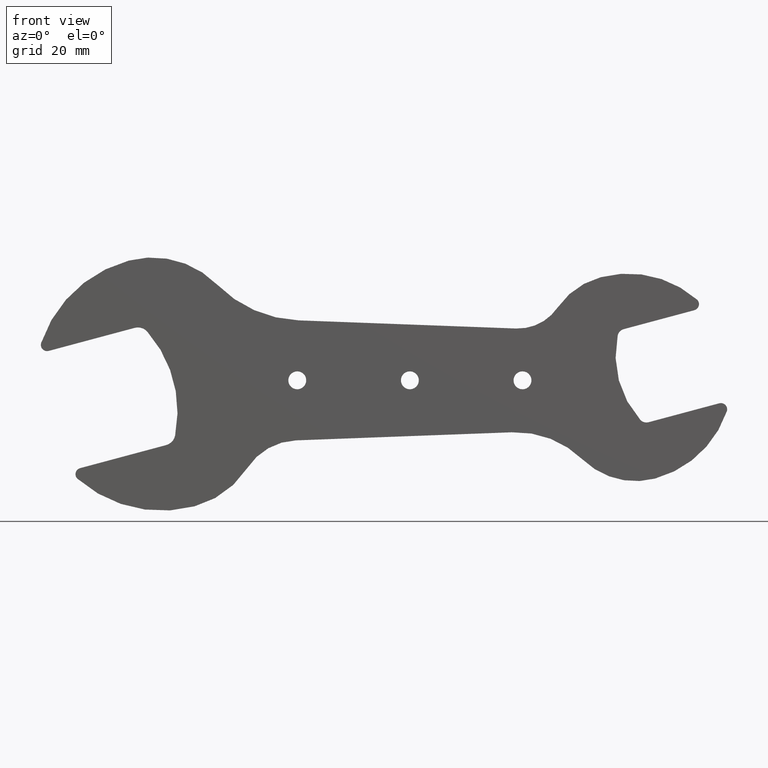
[diagram: clean part render]
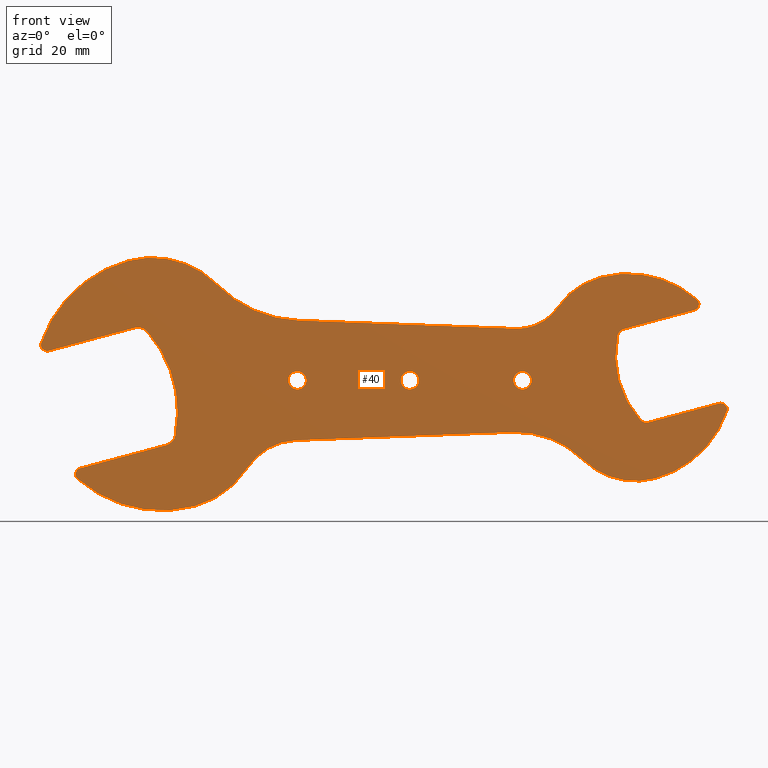
[diagram: same view with one face highlighted and labeled with its STEP entity id]
A machine part, front view. The second image highlights one B-rep face of the part: STEP entity #40.
In plain terms, the highlighted planar face has unit normal (-0, 1, 0).
Its self-contained STEP definition (entity closure, byte-faithful):
#40=ADVANCED_FACE('',(#77,#78,#79,#80),#76,.F.);
#76=PLANE('',#445);
#77=FACE_OUTER_BOUND('',#446,.T.);
#78=FACE_BOUND('',#447,.T.);
#79=FACE_BOUND('',#448,.T.);
#80=FACE_BOUND('',#449,.T.);
#442=CARTESIAN_POINT('',(-9.86938694314E+01,-1.42108547152E-14,-4.10870858466E+01));
#443=DIRECTION('',(-0.00000000000E+00,1.00000000000E+00,0.00000000000E+00));
#444=DIRECTION('',(0.00000000000E+00,0.00000000000E+00,1.00000000000E+00));
#445=AXIS2_PLACEMENT_3D('',#442,#443,#444);
#446=EDGE_LOOP('',(#628,#629,#630,#631,#632,#633,#634,#635,#636,#637,#638,#639,#640,#641,#642,#643,#644,#645,#646,#647,#648,#649,#650,#651,#652,#653,#654,#655));
#447=EDGE_LOOP('',(#656,#657));
#448=EDGE_LOOP('',(#658,#659));
#449=EDGE_LOOP('',(#660,#661));
#628=ORIENTED_EDGE('',*,*,#832,.F.);
#629=ORIENTED_EDGE('',*,*,#833,.T.);
#630=ORIENTED_EDGE('',*,*,#834,.T.);
#631=ORIENTED_EDGE('',*,*,#835,.T.);
#632=ORIENTED_EDGE('',*,*,#836,.F.);
#633=ORIENTED_EDGE('',*,*,#837,.F.);
#634=ORIENTED_EDGE('',*,*,#838,.F.);
#635=ORIENTED_EDGE('',*,*,#839,.F.);
#636=ORIENTED_EDGE('',*,*,#840,.F.);
#637=ORIENTED_EDGE('',*,*,#841,.T.);
#638=ORIENTED_EDGE('',*,*,#842,.T.);
#639=ORIENTED_EDGE('',*,*,#843,.T.);
#640=ORIENTED_EDGE('',*,*,#844,.F.);
#641=ORIENTED_EDGE('',*,*,#845,.F.);
#642=ORIENTED_EDGE('',*,*,#846,.F.);
#643=ORIENTED_EDGE('',*,*,#847,.T.);
#644=ORIENTED_EDGE('',*,*,#848,.T.);
#645=ORIENTED_EDGE('',*,*,#849,.T.);
#646=ORIENTED_EDGE('',*,*,#850,.F.);
#647=ORIENTED_EDGE('',*,*,#851,.F.);
#648=ORIENTED_EDGE('',*,*,#852,.F.);
#649=ORIENTED_EDGE('',*,*,#853,.F.);
#650=ORIENTED_EDGE('',*,*,#854,.F.);
#651=ORIENTED_EDGE('',*,*,#855,.T.);
#652=ORIENTED_EDGE('',*,*,#856,.T.);
#653=ORIENTED_EDGE('',*,*,#857,.T.);
#654=ORIENTED_EDGE('',*,*,#858,.F.);
#655=ORIENTED_EDGE('',*,*,#859,.F.);
#656=ORIENTED_EDGE('',*,*,#860,.F.);
#657=ORIENTED_EDGE('',*,*,#861,.F.);
#658=ORIENTED_EDGE('',*,*,#862,.F.);
#659=ORIENTED_EDGE('',*,*,#863,.F.);
#660=ORIENTED_EDGE('',*,*,#864,.F.);
#661=ORIENTED_EDGE('',*,*,#865,.F.);
#832=EDGE_CURVE('',#934,#935,#936,.T.);
#833=EDGE_CURVE('',#934,#942,#943,.T.);
#834=EDGE_CURVE('',#942,#949,#950,.T.);
#835=EDGE_CURVE('',#949,#956,#957,.T.);
#836=EDGE_CURVE('',#963,#956,#964,.T.);
#837=EDGE_CURVE('',#970,#963,#971,.T.);
#838=EDGE_CURVE('',#977,#970,#978,.T.);
#839=EDGE_CURVE('',#984,#977,#985,.T.);
#840=EDGE_CURVE('',#991,#984,#992,.T.);
#841=EDGE_CURVE('',#991,#998,#999,.T.);
#842=EDGE_CURVE('',#998,#1005,#1006,.T.);
#843=EDGE_CURVE('',#1005,#1012,#1013,.T.);
#844=EDGE_CURVE('',#1019,#1012,#1020,.T.);
#845=EDGE_CURVE('',#1026,#1019,#1027,.T.);
#846=EDGE_CURVE('',#1033,#1026,#1034,.T.);
#847=EDGE_CURVE('',#1033,#1040,#1041,.T.);
#848=EDGE_CURVE('',#1040,#1047,#1048,.T.);
#849=EDGE_CURVE('',#1047,#1054,#1055,.T.);
#850=EDGE_CURVE('',#1061,#1054,#1062,.T.);
#851=EDGE_CURVE('',#1068,#1061,#1069,.T.);
#852=EDGE_CURVE('',#1075,#1068,#1076,.T.);
#853=EDGE_CURVE('',#1082,#1075,#1083,.T.);
#854=EDGE_CURVE('',#1089,#1082,#1090,.T.);
#855=EDGE_CURVE('',#1089,#1096,#1097,.T.);
#856=EDGE_CURVE('',#1096,#1103,#1104,.T.);
#857=EDGE_CURVE('',#1103,#1110,#1111,.T.);
#858=EDGE_CURVE('',#1117,#1110,#1118,.T.);
#859=EDGE_CURVE('',#935,#1117,#1124,.T.);
#860=EDGE_CURVE('',#1130,#1131,#1132,.T.);
#861=EDGE_CURVE('',#1131,#1130,#1138,.T.);
#862=EDGE_CURVE('',#1144,#1145,#1146,.T.);
#863=EDGE_CURVE('',#1145,#1144,#1152,.T.);
#864=EDGE_CURVE('',#1158,#1159,#1160,.T.);
#865=EDGE_CURVE('',#1159,#1158,#1166,.T.);
#934=VERTEX_POINT('',#1614);
#935=VERTEX_POINT('',#1615);
#936=CIRCLE('',#1619,2.90000000000E+01);
#942=VERTEX_POINT('',#1620);
#943=CIRCLE('',#1624,2.17999871439E+01);
#949=VERTEX_POINT('',#1625);
#950=CIRCLE('',#1629,3.05000000000E+01);
#956=VERTEX_POINT('',#1630);
#957=CIRCLE('',#1634,1.50000000000E+00);
#963=VERTEX_POINT('',#1635);
#964=LINE('',#1636,#1637);
#970=VERTEX_POINT('',#1639);
#971=CIRCLE('',#1643,3.00000000000E+00);
#977=VERTEX_POINT('',#1644);
#978=CIRCLE('',#1648,2.90000000000E+01);
#984=VERTEX_POINT('',#1649);
#985=CIRCLE('',#1653,3.00000000000E+00);
#991=VERTEX_POINT('',#1654);
#992=LINE('',#1655,#1656);
#998=VERTEX_POINT('',#1658);
#999=CIRCLE('',#1662,1.50000000000E+00);
#1005=VERTEX_POINT('',#1663);
#1006=CIRCLE('',#1667,3.05000000000E+01);
#1012=VERTEX_POINT('',#1668);
#1013=CIRCLE('',#1672,2.18000000000E+01);
#1019=VERTEX_POINT('',#1673);
#1020=CIRCLE('',#1677,1.45000000000E+01);
#1026=VERTEX_POINT('',#1678);
#1027=LINE('',#1679,#1680);
#1033=VERTEX_POINT('',#1682);
#1034=CIRCLE('',#1686,2.30000000000E+01);
#1040=VERTEX_POINT('',#1687);
#1041=CIRCLE('',#1691,1.81000000000E+01);
#1047=VERTEX_POINT('',#1692);
#1048=CIRCLE('',#1696,2.50000000000E+01);
#1054=VERTEX_POINT('',#1697);
#1055=CIRCLE('',#1701,1.50000000000E+00);
#1061=VERTEX_POINT('',#1702);
#1062=LINE('',#1703,#1704);
#1068=VERTEX_POINT('',#1706);
#1069=CIRCLE('',#1710,2.00000000000E+00);
#1075=VERTEX_POINT('',#1711);
#1076=CIRCLE('',#1715,2.30000000000E+01);
#1082=VERTEX_POINT('',#1716);
#1083=CIRCLE('',#1720,2.00000000000E+00);
#1089=VERTEX_POINT('',#1721);
#1090=LINE('',#1722,#1723);
#1096=VERTEX_POINT('',#1725);
#1097=CIRCLE('',#1729,1.50000000000E+00);
#1103=VERTEX_POINT('',#1730);
#1104=CIRCLE('',#1734,2.50000000000E+01);
#1110=VERTEX_POINT('',#1735);
#1111=CIRCLE('',#1739,1.81000000000E+01);
#1117=VERTEX_POINT('',#1740);
#1118=CIRCLE('',#1744,1.15000000000E+01);
#1124=LINE('',#1745,#1746);
#1130=VERTEX_POINT('',#1748);
#1131=VERTEX_POINT('',#1749);
#1132=CIRCLE('',#1753,2.15000000000E+00);
#1138=CIRCLE('',#1757,2.15000000000E+00);
#1144=VERTEX_POINT('',#1758);
#1145=VERTEX_POINT('',#1759);
#1146=CIRCLE('',#1763,2.15000000000E+00);
#1152=CIRCLE('',#1767,2.15000000000E+00);
#1158=VERTEX_POINT('',#1768);
#1159=VERTEX_POINT('',#1769);
#1160=CIRCLE('',#1773,2.15000000000E+00);
#1166=CIRCLE('',#1777,2.15000000000E+00);
#1614=CARTESIAN_POINT('',(-4.62450529806E+01,0.00000000000E+00,2.29744046267E+01));
#1615=CARTESIAN_POINT('',(-2.67006986228E+01,0.00000000000E+00,1.43764308680E+01));
#1616=CARTESIAN_POINT('',(-2.56153175518E+01,0.00000000000E+00,4.33561125076E+01));
#1617=DIRECTION('',(0.00000000000E+00,-1.00000000000E+00,0.00000000000E+00));
#1618=DIRECTION('',(-0.00000000000E+00,-0.00000000000E+00,-1.00000000000E+00));
#1619=AXIS2_PLACEMENT_3D('',#1616,#1617,#1618);
#1620=CARTESIAN_POINT('',(-6.73951675109E+01,0.00000000000E+00,2.87101620051E+01));
#1621=CARTESIAN_POINT('',(-6.17529139160E+01,0.00000000000E+00,7.65299187596E+00));
#1622=DIRECTION('',(0.00000000000E+00,-1.00000000000E+00,0.00000000000E+00));
#1623=DIRECTION('',(-0.00000000000E+00,-0.00000000000E+00,-1.00000000000E+00));
#1624=AXIS2_PLACEMENT_3D('',#1621,#1622,#1623);
#1625=CARTESIAN_POINT('',(-8.84074606130E+01,0.00000000000E+00,8.97965167578E+00));
#1626=CARTESIAN_POINT('',(-5.95011866352E+01,0.00000000000E+00,-7.50575696762E-01));
#1627=DIRECTION('',(0.00000000000E+00,-1.00000000000E+00,0.00000000000E+00));
#1628=DIRECTION('',(-0.00000000000E+00,-0.00000000000E+00,-1.00000000000E+00));
#1629=AXIS2_PLACEMENT_3D('',#1626,#1627,#1628);
#1630=CARTESIAN_POINT('',(-8.65976119957E+01,0.00000000000E+00,7.05222716874E+00));
#1631=CARTESIAN_POINT('',(-8.69858405813E+01,0.00000000000E+00,8.50111590336E+00));
#1632=DIRECTION('',(0.00000000000E+00,-1.00000000000E+00,-0.00000000000E+00));
#1633=DIRECTION('',(2.58819057078E-01,0.00000000000E+00,-9.65925823080E-01));
#1634=AXIS2_PLACEMENT_3D('',#1631,#1632,#1633);
#1635=CARTESIAN_POINT('',(-6.59776610852E+01,0.00000000000E+00,1.25773266372E+01));
#1636=CARTESIAN_POINT('',(-6.59776610852E+01,-1.42108547152E-14,1.25773266372E+01));
#1637=VECTOR('',#1638,2.13473440898E+01);
#1638=DIRECTION('',(-9.65925823080E-01,0.00000000000E+00,-2.58819057078E-01));
#1639=CARTESIAN_POINT('',(-6.29499755149E+01,0.00000000000E+00,1.16624689079E+01));
#1640=CARTESIAN_POINT('',(-6.52012039140E+01,0.00000000000E+00,9.67954916794E+00));
#1641=DIRECTION('',(0.00000000000E+00,-1.00000000000E+00,0.00000000000E+00));
#1642=DIRECTION('',(-0.00000000000E+00,-0.00000000000E+00,-1.00000000000E+00));
#1643=AXIS2_PLACEMENT_3D('',#1640,#1641,#1642);
#1644=CARTESIAN_POINT('',(-5.62814005209E+01,0.00000000000E+00,-1.32249807339E+01));
#1645=CARTESIAN_POINT('',(-8.47118500392E+01,0.00000000000E+00,-7.50575524534E+00));
#1646=DIRECTION('',(0.00000000000E+00,-1.00000000000E+00,0.00000000000E+00));
#1647=DIRECTION('',(-0.00000000000E+00,-0.00000000000E+00,-1.00000000000E+00));
#1648=AXIS2_PLACEMENT_3D('',#1645,#1646,#1647);
#1649=CARTESIAN_POINT('',(-5.84460243285E+01,0.00000000000E+00,-1.55311141855E+01));
#1650=CARTESIAN_POINT('',(-5.92224815056E+01,0.00000000000E+00,-1.26333367178E+01));
#1651=DIRECTION('',(0.00000000000E+00,-1.00000000000E+00,0.00000000000E+00));
#1652=DIRECTION('',(-0.00000000000E+00,-0.00000000000E+00,-1.00000000000E+00));
#1653=AXIS2_PLACEMENT_3D('',#1650,#1651,#1652);
#1654=CARTESIAN_POINT('',(-7.90659692365E+01,0.00000000000E+00,-2.10562120902E+01));
#1655=CARTESIAN_POINT('',(-7.90659692365E+01,-1.42108547152E-14,-2.10562120902E+01));
#1656=VECTOR('',#1657,2.13473378872E+01);
#1657=DIRECTION('',(9.65925822557E-01,0.00000000000E+00,2.58819059030E-01));
#1658=CARTESIAN_POINT('',(-7.96696312007E+01,0.00000000000E+00,-2.36303355247E+01));
#1659=CARTESIAN_POINT('',(-7.86777406480E+01,0.00000000000E+00,-2.25051008241E+01));
#1660=DIRECTION('',(0.00000000000E+00,-1.00000000000E+00,0.00000000000E+00));
#1661=DIRECTION('',(-0.00000000000E+00,-0.00000000000E+00,-1.00000000000E+00));
#1662=AXIS2_PLACEMENT_3D('',#1659,#1660,#1661);
#1663=CARTESIAN_POINT('',(-5.16072073480E+01,0.00000000000E+00,-3.02113005146E+01));
#1664=CARTESIAN_POINT('',(-5.95011899626E+01,0.00000000000E+00,-7.50563278718E-01));
#1665=DIRECTION('',(0.00000000000E+00,-1.00000000000E+00,-0.00000000000E+00));
#1666=DIRECTION('',(2.58819102119E-01,0.00000000000E+00,-9.65925811012E-01));
#1667=AXIS2_PLACEMENT_3D('',#1664,#1665,#1666);
#1668=CARTESIAN_POINT('',(-3.89528773784E+01,0.00000000000E+00,-2.10063312923E+01));
#1669=CARTESIAN_POINT('',(-5.72494625313E+01,0.00000000000E+00,-9.15411750147E+00));
#1670=DIRECTION('',(0.00000000000E+00,-1.00000000000E+00,0.00000000000E+00));
#1671=DIRECTION('',(-0.00000000000E+00,-0.00000000000E+00,-1.00000000000E+00));
#1672=AXIS2_PLACEMENT_3D('',#1669,#1670,#1671);
#1673=CARTESIAN_POINT('',(-2.73258209085E+01,0.00000000000E+00,-1.43998436820E+01));
#1674=CARTESIAN_POINT('',(-2.67831303730E+01,0.00000000000E+00,-2.88896845018E+01));
#1675=DIRECTION('',(0.00000000000E+00,-1.00000000000E+00,0.00000000000E+00));
#1676=DIRECTION('',(-0.00000000000E+00,-0.00000000000E+00,-1.00000000000E+00));
#1677=AXIS2_PLACEMENT_3D('',#1674,#1675,#1676);
#1678=CARTESIAN_POINT('',(2.44989940176E+01,0.00000000000E+00,-1.24588398495E+01));
#1679=CARTESIAN_POINT('',(2.44989940176E+01,-1.42108547152E-14,-1.24588398495E+01));
#1680=VECTOR('',#1681,5.18611505658E+01);
#1681=DIRECTION('',(-9.99299366882E-01,0.00000000000E+00,-3.74269334824E-02));
#1682=CARTESIAN_POINT('',(4.14473294375E+01,0.00000000000E+00,-1.90052123809E+01));
#1683=CARTESIAN_POINT('',(2.53598134877E+01,0.00000000000E+00,-3.54427252877E+01));
#1684=DIRECTION('',(0.00000000000E+00,-1.00000000000E+00,0.00000000000E+00));
#1685=DIRECTION('',(-0.00000000000E+00,-0.00000000000E+00,-1.00000000000E+00));
#1686=AXIS2_PLACEMENT_3D('',#1683,#1684,#1685);
#1687=CARTESIAN_POINT('',(5.87921297601E+01,0.00000000000E+00,-2.35528617592E+01));
#1688=CARTESIAN_POINT('',(5.41075050329E+01,0.00000000000E+00,-6.06960439766E+00));
#1689=DIRECTION('',(0.00000000000E+00,-1.00000000000E+00,-0.00000000000E+00));
#1690=DIRECTION('',(2.58819046965E-01,0.00000000000E+00,-9.65925825790E-01));
#1691=AXIS2_PLACEMENT_3D('',#1688,#1689,#1690);
#1692=CARTESIAN_POINT('',(7.59973318661E+01,0.00000000000E+00,-7.43355538175E+00));
#1693=CARTESIAN_POINT('',(5.23216536325E+01,0.00000000000E+00,5.95283898053E-01));
#1694=DIRECTION('',(0.00000000000E+00,-1.00000000000E+00,0.00000000000E+00));
#1695=DIRECTION('',(-0.00000000000E+00,-0.00000000000E+00,-1.00000000000E+00));
#1696=AXIS2_PLACEMENT_3D('',#1693,#1694,#1695);
#1697=CARTESIAN_POINT('',(7.41885627805E+01,0.00000000000E+00,-5.50293623834E+00));
#1698=CARTESIAN_POINT('',(7.45767911721E+01,0.00000000000E+00,-6.95182502496E+00));
#1699=DIRECTION('',(0.00000000000E+00,-1.00000000000E+00,0.00000000000E+00));
#1700=DIRECTION('',(-0.00000000000E+00,-0.00000000000E+00,-1.00000000000E+00));
#1701=AXIS2_PLACEMENT_3D('',#1698,#1699,#1700);
#1702=CARTESIAN_POINT('',(5.72400877804E+01,0.00000000000E+00,-1.00442642195E+01));
#1703=CARTESIAN_POINT('',(5.72400877804E+01,-1.42108547152E-14,-1.00442642195E+01));
#1704=VECTOR('',#1705,1.75463518904E+01);
#1705=DIRECTION('',(9.65925857749E-01,0.00000000000E+00,2.58818927691E-01));
#1706=CARTESIAN_POINT('',(5.52373196040E+01,0.00000000000E+00,-9.45196016256E+00));
#1707=CARTESIAN_POINT('',(5.67224499250E+01,0.00000000000E+00,-8.11241250399E+00));
#1708=DIRECTION('',(0.00000000000E+00,-1.00000000000E+00,-0.00000000000E+00));
#1709=DIRECTION('',(2.58818927691E-01,0.00000000000E+00,-9.65925857749E-01));
#1710=AXIS2_PLACEMENT_3D('',#1707,#1708,#1709);
#1711=CARTESIAN_POINT('',(4.98230733843E+01,0.00000000000E+00,1.07542890820E+01));
#1712=CARTESIAN_POINT('',(7.23163182959E+01,0.00000000000E+00,5.95283791090E+00));
#1713=DIRECTION('',(0.00000000000E+00,-1.00000000000E+00,0.00000000000E+00));
#1714=DIRECTION('',(-0.00000000000E+00,-0.00000000000E+00,-1.00000000000E+00));
#1715=AXIS2_PLACEMENT_3D('',#1712,#1713,#1714);
#1716=CARTESIAN_POINT('',(5.12613698656E+01,0.00000000000E+00,1.22686233034E+01));
#1717=CARTESIAN_POINT('',(5.17790077244E+01,0.00000000000E+00,1.03367715889E+01));
#1718=DIRECTION('',(0.00000000000E+00,-1.00000000000E+00,0.00000000000E+00));
#1719=DIRECTION('',(-0.00000000000E+00,-0.00000000000E+00,-1.00000000000E+00));
#1720=AXIS2_PLACEMENT_3D('',#1717,#1718,#1719);
#1721=CARTESIAN_POINT('',(6.82098432396E+01,0.00000000000E+00,1.68099508809E+01));
#1722=CARTESIAN_POINT('',(6.82098432396E+01,-1.42108547152E-14,1.68099508809E+01));
#1723=VECTOR('',#1724,1.75463502152E+01);
#1724=DIRECTION('',(-9.65925857294E-01,0.00000000000E+00,-2.58818929391E-01));
#1725=CARTESIAN_POINT('',(6.88109740719E+01,0.00000000000E+00,1.93863006733E+01));
#1726=CARTESIAN_POINT('',(6.78216148455E+01,0.00000000000E+00,1.82588396668E+01));
#1727=DIRECTION('',(0.00000000000E+00,-1.00000000000E+00,0.00000000000E+00));
#1728=DIRECTION('',(-0.00000000000E+00,-0.00000000000E+00,-1.00000000000E+00));
#1729=AXIS2_PLACEMENT_3D('',#1726,#1727,#1728);
#1730=CARTESIAN_POINT('',(4.57431619755E+01,0.00000000000E+00,2.47142276461E+01));
#1731=CARTESIAN_POINT('',(5.23216536325E+01,0.00000000000E+00,5.95283898053E-01));
#1732=DIRECTION('',(0.00000000000E+00,-1.00000000000E+00,0.00000000000E+00));
#1733=DIRECTION('',(-0.00000000000E+00,-0.00000000000E+00,-1.00000000000E+00));
#1734=AXIS2_PLACEMENT_3D('',#1731,#1732,#1733);
#1735=CARTESIAN_POINT('',(3.53948474156E+01,0.00000000000E+00,1.74231578136E+01));
#1736=CARTESIAN_POINT('',(5.03357797283E+01,0.00000000000E+00,7.20657611373E+00));
#1737=DIRECTION('',(0.00000000000E+00,-1.00000000000E+00,0.00000000000E+00));
#1738=DIRECTION('',(-0.00000000000E+00,-0.00000000000E+00,-1.00000000000E+00));
#1739=AXIS2_PLACEMENT_3D('',#1736,#1737,#1738);
#1740=CARTESIAN_POINT('',(2.54715801339E+01,0.00000000000E+00,1.24224134120E+01));
#1741=CARTESIAN_POINT('',(2.59019898689E+01,0.00000000000E+00,2.39143561312E+01));
#1742=DIRECTION('',(0.00000000000E+00,-1.00000000000E+00,-0.00000000000E+00));
#1743=DIRECTION('',(8.25465873626E-01,0.00000000000E+00,-5.64452027616E-01));
#1744=AXIS2_PLACEMENT_3D('',#1741,#1742,#1743);
#1745=CARTESIAN_POINT('',(-2.67006986228E+01,-1.42108547152E-14,1.43764308680E+01));
#1746=VECTOR('',#1747,5.22088580117E+01);
#1747=DIRECTION('',(9.99299366882E-01,0.00000000000E+00,-3.74269334824E-02));
#1748=CARTESIAN_POINT('',(5.18104078158E-16,0.00000000000E+00,-2.15000000000E+00));
#1749=CARTESIAN_POINT('',(0.00000000000E+00,0.00000000000E+00,2.15000000000E+00));
#1750=CARTESIAN_POINT('',(0.00000000000E+00,0.00000000000E+00,-1.13686837722E-13));
#1751=DIRECTION('',(0.00000000000E+00,-1.00000000000E+00,0.00000000000E+00));
#1752=DIRECTION('',(-1.22460635382E-16,0.00000000000E+00,1.00000000000E+00));
#1753=AXIS2_PLACEMENT_3D('',#1750,#1751,#1752);
#1754=CARTESIAN_POINT('',(0.00000000000E+00,0.00000000000E+00,-1.13686837722E-13));
#1755=DIRECTION('',(0.00000000000E+00,-1.00000000000E+00,0.00000000000E+00));
#1756=DIRECTION('',(-1.22460635382E-16,0.00000000000E+00,1.00000000000E+00));
#1757=AXIS2_PLACEMENT_3D('',#1754,#1755,#1756);
#1758=CARTESIAN_POINT('',(-2.69999757788E+01,0.00000000000E+00,-2.15000000000E+00));
#1759=CARTESIAN_POINT('',(-2.69999757788E+01,0.00000000000E+00,2.15000000000E+00));
#1760=CARTESIAN_POINT('',(-2.69999757788E+01,0.00000000000E+00,0.00000000000E+00));
#1761=DIRECTION('',(0.00000000000E+00,-1.00000000000E+00,0.00000000000E+00));
#1762=DIRECTION('',(-1.22460635382E-16,0.00000000000E+00,1.00000000000E+00));
#1763=AXIS2_PLACEMENT_3D('',#1760,#1761,#1762);
#1764=CARTESIAN_POINT('',(-2.69999757788E+01,0.00000000000E+00,0.00000000000E+00));
#1765=DIRECTION('',(0.00000000000E+00,-1.00000000000E+00,0.00000000000E+00));
#1766=DIRECTION('',(-1.22460635382E-16,0.00000000000E+00,1.00000000000E+00));
#1767=AXIS2_PLACEMENT_3D('',#1764,#1765,#1766);
#1768=CARTESIAN_POINT('',(2.70000242212E+01,0.00000000000E+00,-2.15000000000E+00));
#1769=CARTESIAN_POINT('',(2.70000242212E+01,0.00000000000E+00,2.15000000000E+00));
#1770=CARTESIAN_POINT('',(2.70000242212E+01,0.00000000000E+00,0.00000000000E+00));
#1771=DIRECTION('',(0.00000000000E+00,-1.00000000000E+00,0.00000000000E+00));
#1772=DIRECTION('',(-1.22460635382E-16,0.00000000000E+00,1.00000000000E+00));
#1773=AXIS2_PLACEMENT_3D('',#1770,#1771,#1772);
#1774=CARTESIAN_POINT('',(2.70000242212E+01,0.00000000000E+00,0.00000000000E+00));
#1775=DIRECTION('',(0.00000000000E+00,-1.00000000000E+00,0.00000000000E+00));
#1776=DIRECTION('',(-1.22460635382E-16,0.00000000000E+00,1.00000000000E+00));
#1777=AXIS2_PLACEMENT_3D('',#1774,#1775,#1776);